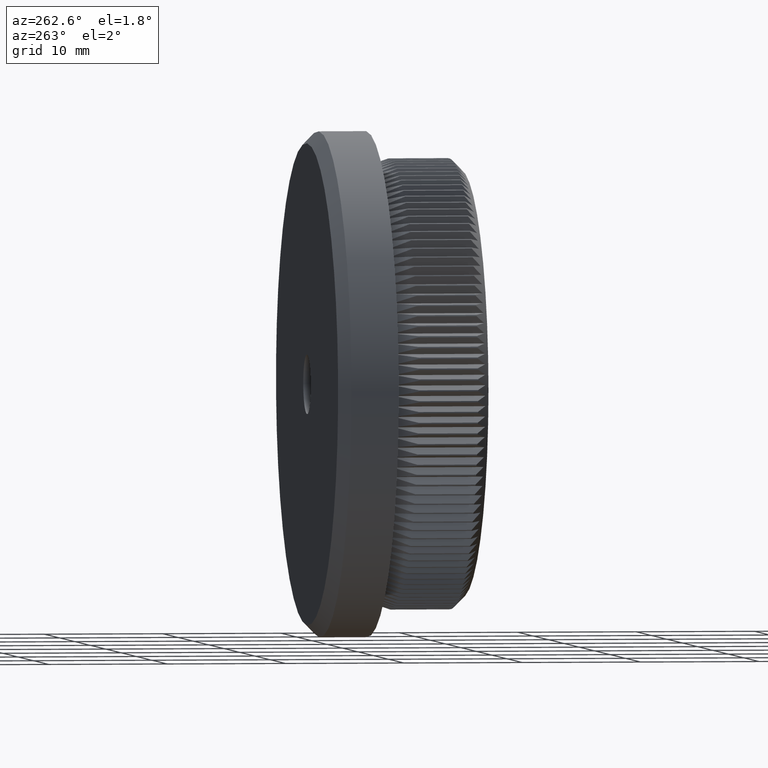
[diagram: clean part render]
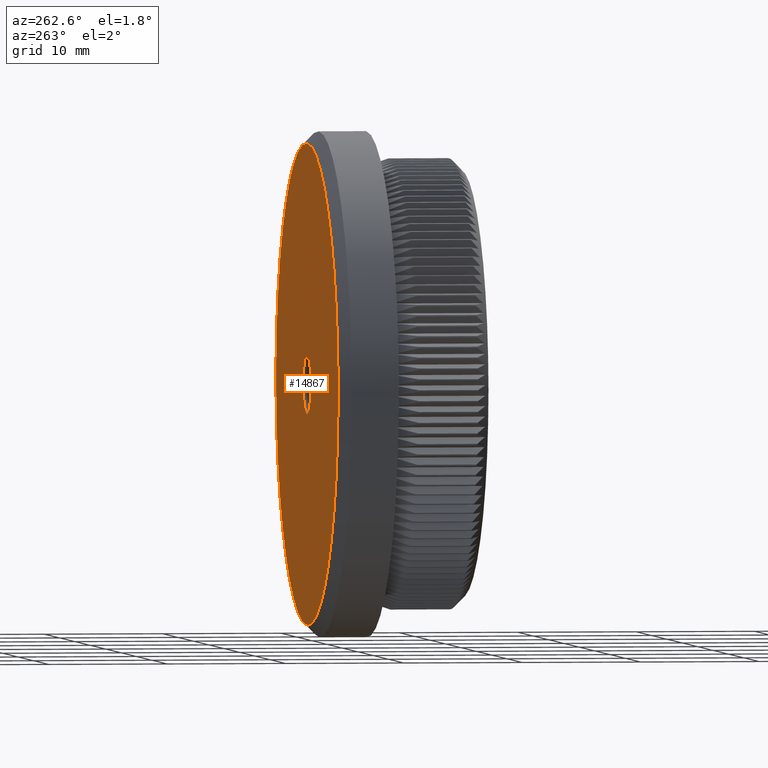
[diagram: same view with one face highlighted and labeled with its STEP entity id]
A machine part, auxiliary view. The second image highlights one B-rep face of the part: STEP entity #14867.
In plain terms, the highlighted planar face has unit normal (0, 1, 0).
Its self-contained STEP definition (entity closure, byte-faithful):
#1152 = ORIENTED_EDGE ( 'NONE', *, *, #14208, .T. ) ;
#1293 = ORIENTED_EDGE ( 'NONE', *, *, #25937, .F. ) ;
#1296 = DIRECTION ( 'NONE',  ( 0.0000000000000000000, 1.000000000000000000, 0.0000000000000000000 ) ) ;
#1463 = CARTESIAN_POINT ( 'NONE',  ( 0.0000000000000000000, 13.00000000000000000, -20.19999999999999200 ) ) ;
#2421 = EDGE_LOOP ( 'NONE', ( #13802, #1152 ) ) ;
#2844 = CARTESIAN_POINT ( 'NONE',  ( 3.061616997868382600E-016, 13.00000000000000000, -2.500000000000000000 ) ) ;
#3600 = CIRCLE ( 'NONE', #13944, 2.500000000000000000 ) ;
#4333 = EDGE_CURVE ( 'NONE', #26342, #22950, #24288, .T. ) ;
#4899 = AXIS2_PLACEMENT_3D ( 'NONE', #22824, #15760, #22726 ) ;
#5545 = CIRCLE ( 'NONE', #26239, 20.19999999999999200 ) ;
#7153 = DIRECTION ( 'NONE',  ( 0.0000000000000000000, -0.0000000000000000000, 1.000000000000000000 ) ) ;
#7751 = FACE_OUTER_BOUND ( 'NONE', #2421, .T. ) ;
#9872 = VERTEX_POINT ( 'NONE', #10006 ) ;
#9967 = ORIENTED_EDGE ( 'NONE', *, *, #4333, .F. ) ;
#10006 = CARTESIAN_POINT ( 'NONE',  ( 2.535018874235020400E-015, 13.00000000000000000, 20.19999999999999200 ) ) ;
#13240 = DIRECTION ( 'NONE',  ( 0.0000000000000000000, 0.0000000000000000000, 1.000000000000000000 ) ) ;
#13397 = DIRECTION ( 'NONE',  ( 0.0000000000000000000, 1.000000000000000000, 0.0000000000000000000 ) ) ;
#13782 = VERTEX_POINT ( 'NONE', #1463 ) ;
#13802 = ORIENTED_EDGE ( 'NONE', *, *, #17998, .T. ) ;
#13895 = CARTESIAN_POINT ( 'NONE',  ( 0.0000000000000000000, 13.00000000000000000, 2.500000000000000000 ) ) ;
#13944 = AXIS2_PLACEMENT_3D ( 'NONE', #26912, #17607, #17397 ) ;
#14006 = FACE_BOUND ( 'NONE', #23539, .T. ) ;
#14208 = EDGE_CURVE ( 'NONE', #9872, #13782, #5545, .T. ) ;
#14867 = ADVANCED_FACE ( 'NONE', ( #14006, #7751 ), #28488, .T. ) ;
#15388 = CARTESIAN_POINT ( 'NONE',  ( 0.0000000000000000000, 13.00000000000000000, 0.0000000000000000000 ) ) ;
#15760 = DIRECTION ( 'NONE',  ( 0.0000000000000000000, 1.000000000000000000, 0.0000000000000000000 ) ) ;
#16595 = DIRECTION ( 'NONE',  ( 0.0000000000000000000, 1.000000000000000000, 0.0000000000000000000 ) ) ;
#17397 = DIRECTION ( 'NONE',  ( 0.0000000000000000000, 0.0000000000000000000, 1.000000000000000000 ) ) ;
#17607 = DIRECTION ( 'NONE',  ( 0.0000000000000000000, 1.000000000000000000, 0.0000000000000000000 ) ) ;
#17790 = AXIS2_PLACEMENT_3D ( 'NONE', #18120, #13397, #25295 ) ;
#17998 = EDGE_CURVE ( 'NONE', #13782, #9872, #25956, .T. ) ;
#18120 = CARTESIAN_POINT ( 'NONE',  ( 0.0000000000000000000, 13.00000000000000000, 0.0000000000000000000 ) ) ;
#21287 = CARTESIAN_POINT ( 'NONE',  ( 0.0000000000000000000, 13.00000000000000000, 0.0000000000000000000 ) ) ;
#22726 = DIRECTION ( 'NONE',  ( 0.0000000000000000000, 0.0000000000000000000, 1.000000000000000000 ) ) ;
#22824 = CARTESIAN_POINT ( 'NONE',  ( 0.0000000000000000000, 13.00000000000000000, 0.0000000000000000000 ) ) ;
#22950 = VERTEX_POINT ( 'NONE', #13895 ) ;
#23539 = EDGE_LOOP ( 'NONE', ( #1293, #9967 ) ) ;
#24288 = CIRCLE ( 'NONE', #17790, 2.500000000000000000 ) ;
#25295 = DIRECTION ( 'NONE',  ( 0.0000000000000000000, 0.0000000000000000000, 1.000000000000000000 ) ) ;
#25937 = EDGE_CURVE ( 'NONE', #22950, #26342, #3600, .T. ) ;
#25956 = CIRCLE ( 'NONE', #4899, 20.19999999999999200 ) ;
#26239 = AXIS2_PLACEMENT_3D ( 'NONE', #15388, #1296, #13240 ) ;
#26342 = VERTEX_POINT ( 'NONE', #2844 ) ;
#26418 = AXIS2_PLACEMENT_3D ( 'NONE', #21287, #16595, #7153 ) ;
#26912 = CARTESIAN_POINT ( 'NONE',  ( 0.0000000000000000000, 13.00000000000000000, 0.0000000000000000000 ) ) ;
#28488 = PLANE ( 'NONE',  #26418 ) ;